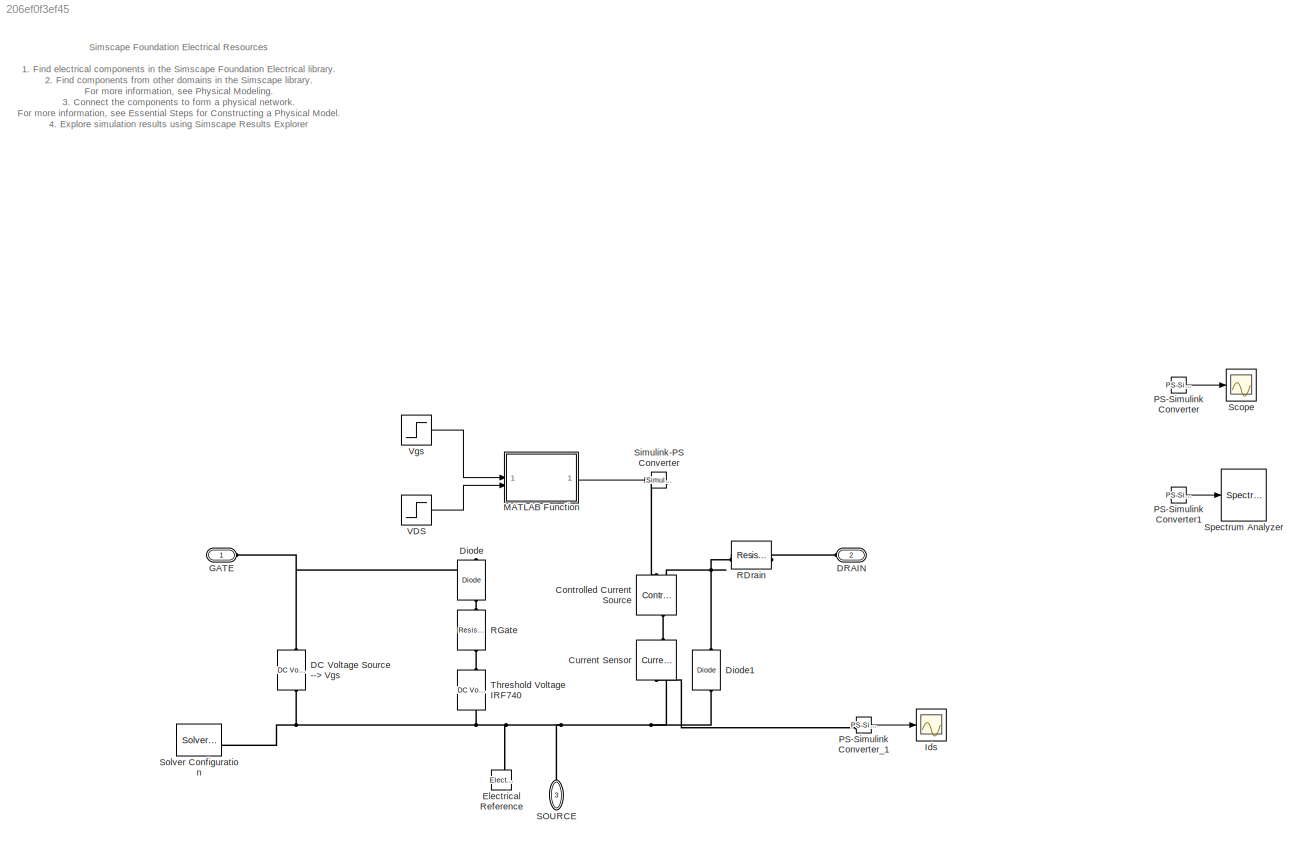
MODEL slx_206ef0f3ef45
KIND model
CONFIG AbsTol = 1e-3
CONFIG EnableMultiTasking = off
CONFIG FixedStep = auto
CONFIG MaxStep = auto
CONFIG MinStep = auto
CONFIG RelTol = 1e-3
CONFIG SampleTimeConstraint = Unconstrained
CONFIG SolverName = VariableStepAuto
CONFIG StartTime = 0.0
CONFIG StopTime = 10
WORKSPACE source: mxarray member
WORKSPACE gm = 1
BLOCK [Reference] Controlled Current Source  REF=fl_lib/Electrical/Electrical Sources/Controlled Current
Source
  NameLocation = left
  SourceBlock = fl_lib/Electrical/Electrical Sources/Controlled Current\nSource
  SourceType = Controlled Current\nSource
BLOCK [Reference] Current Sensor  REF=fl_lib/Electrical/Electrical Sensors/Current Sensor
  NameLocation = left
  SourceBlock = fl_lib/Electrical/Electrical Sensors/Current Sensor
  SourceType = Current Sensor
BLOCK [Reference] DC Voltage Source --> Vgs  REF=fl_lib/Electrical/Electrical Sources/DC Voltage Source
  NameLocation = right
  SourceBlock = fl_lib/Electrical/Electrical Sources/DC Voltage Source
  SourceType = DC Voltage Source
BLOCK [PMIOPort] DRAIN
  NameLocation = top
  Port = 2
  Side = Left
BLOCK [Reference] Diode  REF=fl_lib/Electrical/Electrical Elements/Diode
  NameLocation = left
  SourceBlock = fl_lib/Electrical/Electrical Elements/Diode
  SourceType = Diode
BLOCK [Reference] Diode1  REF=fl_lib/Electrical/Electrical Elements/Diode
  NameLocation = right
  SourceBlock = fl_lib/Electrical/Electrical Elements/Diode
  SourceType = Diode
BLOCK [Reference] Electrical Reference  REF=fl_lib/Electrical/Electrical Elements/Electrical Reference
  SourceBlock = fl_lib/Electrical/Electrical Elements/Electrical Reference
  SourceType = Electrical Reference
BLOCK [PMIOPort] GATE
  Description = G
  Side = Left
BLOCK [Scope] Ids
  Floating = off
  NumInputPorts = 1
  ScopeSpecificationString = Simulink.scopes.TimeScopeBlockCfg('CurrentConfiguration', extmgr.ConfigurationSet(extmgr.Configuration('Core','General UI',true),extmgr.Configuration('Core','Source UI',true),extmgr.Configuration('Sources','WiredSimulink',true,'DataLoggingVariableName','ScopeData1'),extmgr.Configuration('Visuals','Time Domain',true,'SerializedDisplays',{struct('MinYLimReal','-0.66261','MaxYLimReal','5.96346','YLab...<+1409ch>
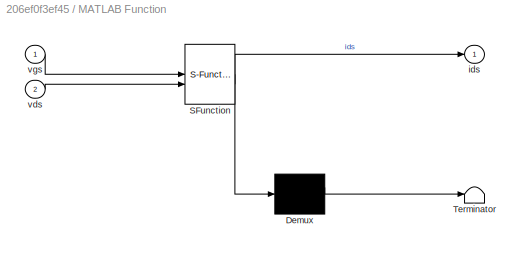
BLOCK [SubSystem] MATLAB Function
  ErrorFcn = Stateflow.Translate.translate
  PermitHierarchicalResolution = ExplicitOnly
  SFBlockType = MATLAB Function
  TreatAsAtomicUnit = on
BLOCK [Demux] MATLAB Function/ Demux 
  Outputs = 1
BLOCK [S-Function] MATLAB Function/ SFunction 
  EnableBusSupport = on
  FunctionName = sf_sfun
  PortCounts = [2 2]
  SFcnIsStateOwnerBlock = off
  SFunctionDeploymentMode = off
  Tag = Stateflow S-Function 2
BLOCK [Terminator] MATLAB Function/ Terminator 
BLOCK [Outport] MATLAB Function/ids
BLOCK [Inport] MATLAB Function/vds
  Port = 2
BLOCK [Inport] MATLAB Function/vgs
BLOCK [Reference] PS-Simulink Converter  REF=nesl_utility/PS-Simulink
Converter
  SourceBlock = nesl_utility/PS-Simulink\nConverter
  SourceType = PS-Simulink\nConverter
BLOCK [Reference] PS-Simulink Converter1  REF=nesl_utility/PS-Simulink
Converter
  SourceBlock = nesl_utility/PS-Simulink\nConverter
  SourceType = PS-Simulink\nConverter
BLOCK [Reference] PS-Simulink Converter_1  REF=nesl_utility/PS-Simulink
Converter
  SourceBlock = nesl_utility/PS-Simulink\nConverter
  SourceType = PS-Simulink\nConverter
BLOCK [Reference] RDrain  REF=fl_lib/Electrical/Electrical Elements/Resistor
  NameLocation = top
  SourceBlock = fl_lib/Electrical/Electrical Elements/Resistor
  SourceType = Resistor
BLOCK [Reference] RGate  REF=fl_lib/Electrical/Electrical Elements/Resistor
  NameLocation = left
  SourceBlock = fl_lib/Electrical/Electrical Elements/Resistor
  SourceType = Resistor
BLOCK [PMIOPort] SOURCE
  NameLocation = right
  Port = 3
  Side = Left
BLOCK [Scope] Scope
  Floating = off
  NumInputPorts = 1
  ScopeSpecificationString = Simulink.scopes.TimeScopeBlockCfg('CurrentConfiguration', extmgr.ConfigurationSet(extmgr.Configuration('Core','General UI',true),extmgr.Configuration('Core','Source UI',true),extmgr.Configuration('Sources','WiredSimulink',true),extmgr.Configuration('Visuals','Time Domain',true,'SerializedDisplays',{struct('MinYLimReal','-1.00000','MaxYLimReal','1.00000','YLabelReal','','MinYLimMag','0.00000','MaxY...<+1376ch>
BLOCK [Reference] Simulink-PS Converter  REF=nesl_utility/Simulink-PS
Converter
  SourceBlock = nesl_utility/Simulink-PS\nConverter
  SourceType = Simulink-PS\nConverter
BLOCK [Reference] Solver Configuration  REF=nesl_utility/Solver
Configuration
  SourceBlock = nesl_utility/Solver\nConfiguration
  SourceType = Solver\nConfiguration
BLOCK [SpectrumAnalyzer] Spectrum Analyzer
  AveragingMethod = Running
  AxesScalingNumUpdates = 10
  GraphicalSettings = {"GraphicalSettings":{"Style":{"BackgroundColor":[0.12941176470588237,0.12941176470588237,0.12941176470588237],"AxesColor":[0,0,0],"LabelsColor":[0.6862745098039216,0.6862745098039216,0.6862745098039216],"PreserveColors":false,"Visible":[true],"LineStyle":["-"],"LineColor":[[1,1,0]],"LineWidth":[0.5],"Marker":["none"],"FontSize":"small"},"Cursors":{"Enabled":false,"XLocation":[2,8],"YLocation":[2,...<+857ch>
  Method = Welch
  PlotAsTwoSidedSpectrum = off
  SampleRate = 10e3
  ScopeFrameLocation = window
  ScopeSpecificationString = spbscopes.SpectrumAnalyzerBlockCfg('CurrentConfiguration', extmgr.ConfigurationSet(extmgr.Configuration('Core','General UI',true,'ShowNewAction',false,'ShowLoadConfigSet',false,'ShowSaveConfigSet',false,'ShowConfiguration',false,'ShowCloseAll',false,'DisplayFullSourceName',false,'MessageLogAutoOpenMode','for warn/fail messages','MessageLogDialogPosition',[20 520 450 500],'ShowMainToolbar',true,'Sh...<+8095ch>
  SegLen = 128
  ShowGrid = off
  Span = 10e3
  StartFrequency = -5e3
  StopFrequency = 5e3
  WasSavedAsWebScope = on
  WindowPosition = [368.000000,182.000000,800.000000,500.000000,]
  YLimits = [-1,1]
BLOCK [Reference] Threshold Voltage IRF740  REF=fl_lib/Electrical/Electrical Sources/DC Voltage Source
  NameLocation = right
  SourceBlock = fl_lib/Electrical/Electrical Sources/DC Voltage Source
  SourceType = DC Voltage Source
BLOCK [Step] VDS
  After = 100
  SampleTime = 0
BLOCK [Step] Vgs
  After = 10
  SampleTime = 0
ANNOTATION (root): 1. Find electrical components in the Simscape Foundation Electrical library . 2. Find components from other domains in the Simscape library . For more information, see Physical Modeling . 3. Connect the components to form a physical network. For more information, see Essential Steps for Constructing a Physical Model . 4. Explore simulation results using Simscape Results Explorer
ANNOTATION (root): Simscape Foundation Electrical Resources
LINE MATLAB Function:1 -> Simulink-PS Converter:1
LINE PS-Simulink Converter1:1 -> Spectrum Analyzer:1
LINE PS-Simulink Converter:1 -> Scope:1
LINE PS-Simulink Converter_1:1 -> Ids:1
LINE VDS:1 -> MATLAB Function:2
LINE Vgs:1 -> MATLAB Function:1
PLINE Controlled Current Source:LConn1 -- Current Sensor:LConn1
PLINE Controlled Current Source:RConn1 -- Simulink-PS Converter:RConn1
PNET net1: Controlled Current Source:RConn2 -- Diode1:RConn1 -- RDrain:RConn1
PLINE Current Sensor:RConn1 -- PS-Simulink Converter_1:LConn1
PNET net2: Current Sensor:RConn2 -- DC Voltage Source --> Vgs:RConn1 -- Diode1:LConn1 -- Electrical Reference:LConn1 -- SOURCE:RConn1 -- Solver Configuration:RConn1 -- Threshold Voltage IRF740:RConn1
PNET net3: DC Voltage Source --> Vgs:LConn1 -- Diode:LConn1 -- GATE:RConn1
PLINE DRAIN:RConn1 -- RDrain:LConn1
PLINE Diode:RConn1 -- RGate:LConn1
PLINE RGate:RConn1 -- Threshold Voltage IRF740:LConn1
note: PNET lines group multi-terminal physical nets as a canonical sorted terminal list (undirected conserving connections); 2-terminal nets keep the pairwise PLINE form
CHART MATLAB Function states=1 transitions=1
  STATE_LABEL 'eML_blk_kernel()'
  STATE_LABEL 'SCRIPT:\nfunction ids = fcn(vgs, vds)\n% === Parametri del modello ===\nVth   = 4.7;        % Tensione di soglia [V]\nKPLIN = 2.4;        % Guadagno in regione lineare [A/V^2]\nKPSAT = 11.7;       % Guadagno in regione di saturazione [A/V^2]\ntheta = 0.3;        % Effetto Early [1/V]\n\n% === Calcolo corrente IDS ===\nif vgs <= Vth\n    % Regione di interdizione (cut-off)\n    ids = 0;\n\nelseif vds < (vgs - V...<+206ch>'
CHART  states=0 transitions=0
